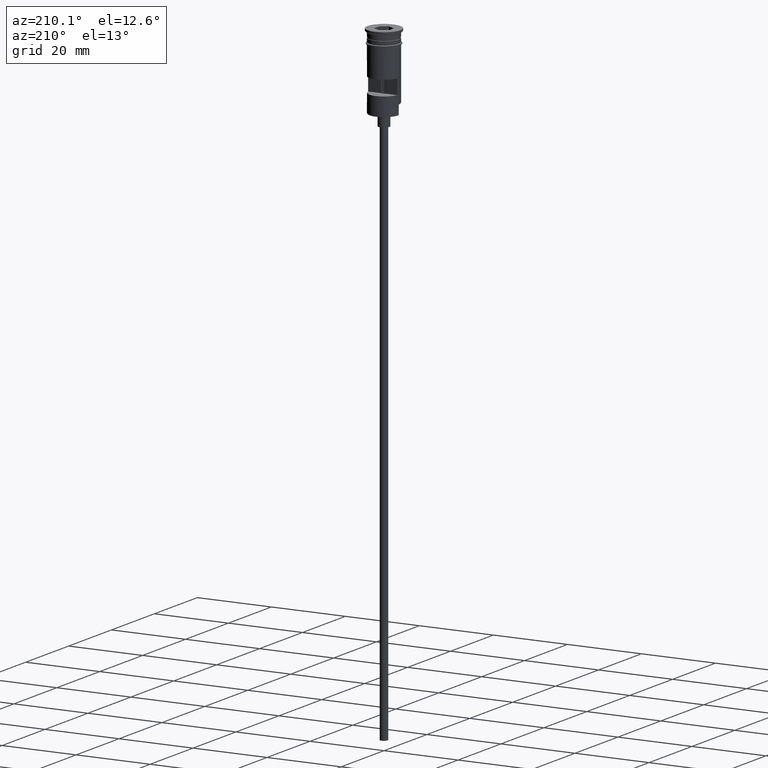
[diagram: clean part render]
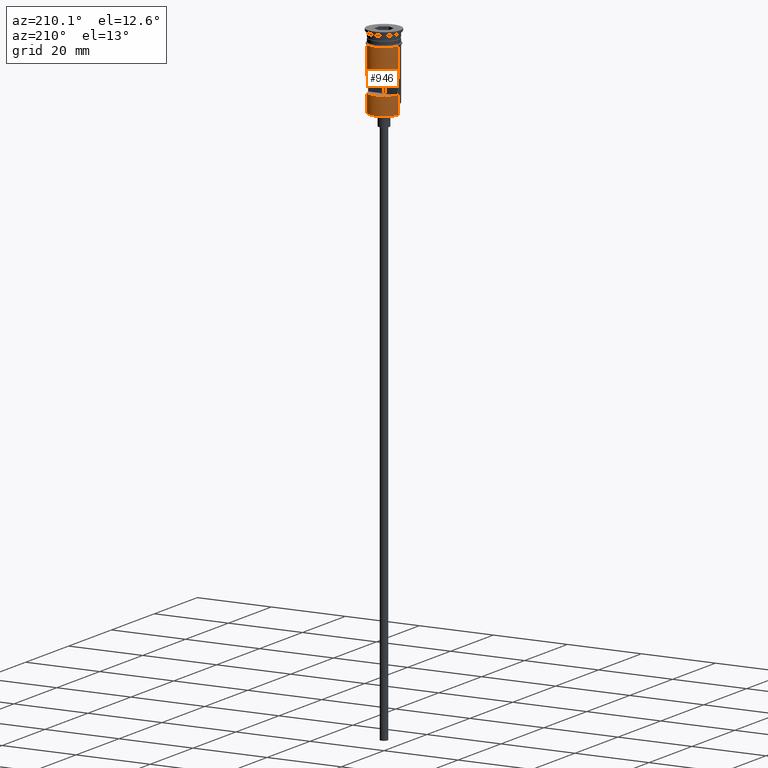
[diagram: same view with one face highlighted and labeled with its STEP entity id]
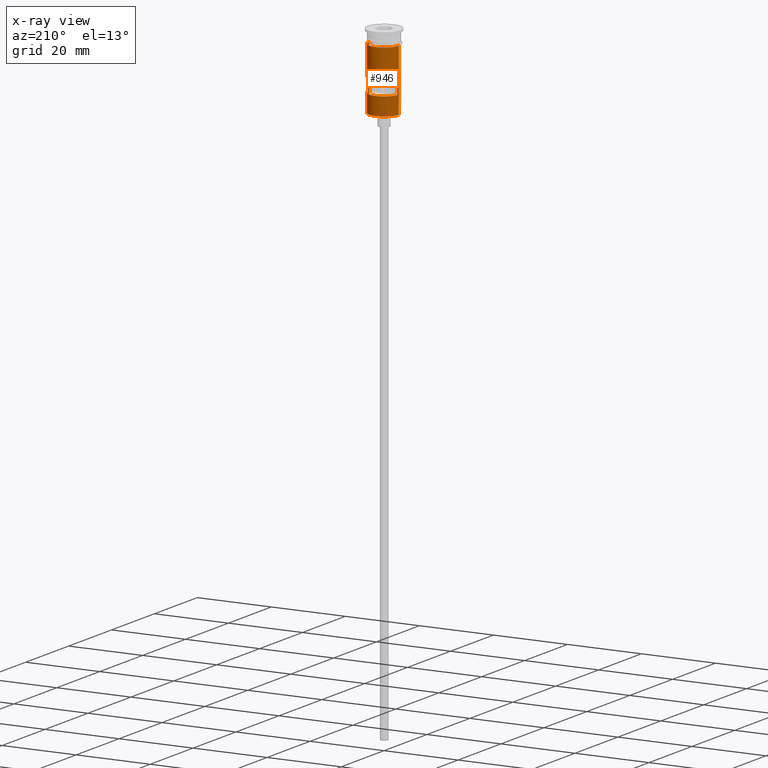
[diagram: x-ray of the same camera — body ghosted, the highlighted face saturated]
A machine part, auxiliary view. The second image highlights one B-rep face of the part: STEP entity #946.
The next image is the same camera in x-ray: the body ghosted, the highlighted face saturated — about 0% of this face is hidden behind the body in this view.
In plain terms, the highlighted cylindrical surface (edge-blend (fillet) strip) has radius 4 mm, axis along (-0, -0, 1).
Its self-contained STEP definition (entity closure, byte-faithful):
#2 = VERTEX_POINT ( 'NONE', #493 ) ;
#12 = DIRECTION ( 'NONE',  ( -0.000000000000000000, -0.000000000000000000, 1.000000000000000000 ) ) ;
#18 = DIRECTION ( 'NONE',  ( -1.000000000000000000, 0.000000000000000000, 0.000000000000000000 ) ) ;
#30 = DIRECTION ( 'NONE',  ( -0.000000000000000000, -0.000000000000000000, 1.000000000000000000 ) ) ;
#69 = LINE ( 'NONE', #559, #1596 ) ;
#79 = VECTOR ( 'NONE', #30, 1000.000000000000000 ) ;
#130 = EDGE_CURVE ( 'NONE', #646, #2, #266, .T. ) ;
#147 = CARTESIAN_POINT ( 'NONE',  ( -3.954743986657037524, 0.5999999999999996447, 0.000000000000000000 ) ) ;
#169 = CARTESIAN_POINT ( 'NONE',  ( 3.954743986657038413, 0.5999999999999996447, -11.50000000000000000 ) ) ;
#266 = CIRCLE ( 'NONE', #401, 4.000000000000000000 ) ;
#277 = DIRECTION ( 'NONE',  ( -0.000000000000000000, -0.000000000000000000, 1.000000000000000000 ) ) ;
#283 = LINE ( 'NONE', #147, #79 ) ;
#286 = VERTEX_POINT ( 'NONE', #568 ) ;
#304 = EDGE_CURVE ( 'NONE', #1567, #523, #490, .T. ) ;
#315 = CARTESIAN_POINT ( 'NONE',  ( 3.954743986657038413, 0.5999999999999996447, -15.50000000000000000 ) ) ;
#401 = AXIS2_PLACEMENT_3D ( 'NONE', #1395, #1177, #1022 ) ;
#411 = EDGE_LOOP ( 'NONE', ( #1162, #1601, #727, #1572, #780, #1145 ) ) ;
#416 = EDGE_CURVE ( 'NONE', #1381, #507, #1085, .T. ) ;
#425 = CARTESIAN_POINT ( 'NONE',  ( 4.000000000000000000, 4.898587196589412829E-16, -17.79999999999998295 ) ) ;
#426 = EDGE_CURVE ( 'NONE', #1476, #1381, #482, .T. ) ;
#471 = ORIENTED_EDGE ( 'NONE', *, *, #958, .F. ) ;
#482 = LINE ( 'NONE', #1129, #1364 ) ;
#490 = CIRCLE ( 'NONE', #1110, 4.000000000000000000 ) ;
#493 = CARTESIAN_POINT ( 'NONE',  ( -3.999999999999997335, 0.000000000000000000, -20.29999999999997584 ) ) ;
#495 = AXIS2_PLACEMENT_3D ( 'NONE', #541, #277, #905 ) ;
#507 = VERTEX_POINT ( 'NONE', #543 ) ;
#511 = CARTESIAN_POINT ( 'NONE',  ( 0.000000000000000000, 0.000000000000000000, -3.799999999999998490 ) ) ;
#523 = VERTEX_POINT ( 'NONE', #169 ) ;
#526 = FACE_BOUND ( 'NONE', #853, .T. ) ;
#541 = CARTESIAN_POINT ( 'NONE',  ( 0.000000000000000000, 0.000000000000000000, 0.000000000000000000 ) ) ;
#543 = CARTESIAN_POINT ( 'NONE',  ( -4.000000000000000000, 4.898587196589412829E-16, -3.799999999999998490 ) ) ;
#558 = DIRECTION ( 'NONE',  ( -0.000000000000000000, 0.000000000000000000, -1.000000000000000000 ) ) ;
#559 = CARTESIAN_POINT ( 'NONE',  ( 3.999999999999997335, 4.898587196589409870E-16, -20.49999999999999645 ) ) ;
#568 = CARTESIAN_POINT ( 'NONE',  ( -3.954743986657037524, 0.5999999999999996447, -15.50000000000000000 ) ) ;
#569 = DIRECTION ( 'NONE',  ( -0.000000000000000000, -0.000000000000000000, 1.000000000000000000 ) ) ;
#595 = DIRECTION ( 'NONE',  ( -0.000000000000000000, -0.000000000000000000, 1.000000000000000000 ) ) ;
#646 = VERTEX_POINT ( 'NONE', #1197 ) ;
#679 = CARTESIAN_POINT ( 'NONE',  ( -3.999999999999997335, 0.000000000000000000, -17.79999999999998295 ) ) ;
#695 = LINE ( 'NONE', #965, #1588 ) ;
#709 = VECTOR ( 'NONE', #1252, 1000.000000000000000 ) ;
#727 = ORIENTED_EDGE ( 'NONE', *, *, #416, .F. ) ;
#740 = EDGE_CURVE ( 'NONE', #646, #1476, #69, .T. ) ;
#780 = ORIENTED_EDGE ( 'NONE', *, *, #740, .F. ) ;
#781 = CARTESIAN_POINT ( 'NONE',  ( 0.000000000000000000, 0.000000000000000000, -15.50000000000000000 ) ) ;
#787 = CARTESIAN_POINT ( 'NONE',  ( 4.000000000000000000, 0.000000000000000000, -3.799999999999998490 ) ) ;
#827 = CARTESIAN_POINT ( 'NONE',  ( 0.000000000000000000, 0.000000000000000000, -11.50000000000000000 ) ) ;
#828 = AXIS2_PLACEMENT_3D ( 'NONE', #511, #1581, #1496 ) ;
#839 = CARTESIAN_POINT ( 'NONE',  ( -3.954743986657037524, 0.5999999999999996447, -11.50000000000000000 ) ) ;
#853 = EDGE_LOOP ( 'NONE', ( #993, #1306, #1243, #471 ) ) ;
#890 = DIRECTION ( 'NONE',  ( -0.000000000000000000, -0.000000000000000000, 1.000000000000000000 ) ) ;
#895 = CYLINDRICAL_SURFACE ( 'NONE', #495, 4.000000000000000000 ) ;
#905 = DIRECTION ( 'NONE',  ( 1.000000000000000000, 0.000000000000000000, 0.000000000000000000 ) ) ;
#946 = ADVANCED_FACE ( 'NONE', ( #526, #1156 ), #895, .T. ) ;
#958 = EDGE_CURVE ( 'NONE', #1079, #286, #1009, .T. ) ;
#965 = CARTESIAN_POINT ( 'NONE',  ( -4.000000000000000000, 4.898587196589412829E-16, 0.000000000000000000 ) ) ;
#970 = EDGE_CURVE ( 'NONE', #523, #1079, #1271, .T. ) ;
#993 = ORIENTED_EDGE ( 'NONE', *, *, #970, .F. ) ;
#1009 = CIRCLE ( 'NONE', #1165, 4.000000000000000000 ) ;
#1022 = DIRECTION ( 'NONE',  ( -1.000000000000000000, 0.000000000000000000, 0.000000000000000000 ) ) ;
#1044 = LINE ( 'NONE', #1537, #1242 ) ;
#1052 = EDGE_CURVE ( 'NONE', #2, #1459, #1044, .T. ) ;
#1055 = DIRECTION ( 'NONE',  ( 1.000000000000000000, 0.000000000000000000, 0.000000000000000000 ) ) ;
#1079 = VERTEX_POINT ( 'NONE', #315 ) ;
#1085 = CIRCLE ( 'NONE', #828, 4.000000000000000000 ) ;
#1110 = AXIS2_PLACEMENT_3D ( 'NONE', #827, #558, #1055 ) ;
#1129 = CARTESIAN_POINT ( 'NONE',  ( 4.000000000000000000, 0.000000000000000000, 0.000000000000000000 ) ) ;
#1145 = ORIENTED_EDGE ( 'NONE', *, *, #130, .T. ) ;
#1156 = FACE_OUTER_BOUND ( 'NONE', #411, .T. ) ;
#1162 = ORIENTED_EDGE ( 'NONE', *, *, #1052, .T. ) ;
#1165 = AXIS2_PLACEMENT_3D ( 'NONE', #781, #1393, #18 ) ;
#1177 = DIRECTION ( 'NONE',  ( 0.000000000000000000, 0.000000000000000000, 1.000000000000000000 ) ) ;
#1197 = CARTESIAN_POINT ( 'NONE',  ( 3.999999999999997335, 4.898587196589409870E-16, -20.29999999999997584 ) ) ;
#1242 = VECTOR ( 'NONE', #890, 1000.000000000000000 ) ;
#1243 = ORIENTED_EDGE ( 'NONE', *, *, #1415, .F. ) ;
#1252 = DIRECTION ( 'NONE',  ( 0.000000000000000000, 0.000000000000000000, -1.000000000000000000 ) ) ;
#1271 = LINE ( 'NONE', #1401, #709 ) ;
#1306 = ORIENTED_EDGE ( 'NONE', *, *, #304, .F. ) ;
#1364 = VECTOR ( 'NONE', #12, 1000.000000000000000 ) ;
#1381 = VERTEX_POINT ( 'NONE', #787 ) ;
#1393 = DIRECTION ( 'NONE',  ( 0.000000000000000000, 0.000000000000000000, 1.000000000000000000 ) ) ;
#1395 = CARTESIAN_POINT ( 'NONE',  ( 0.000000000000000000, 0.000000000000000000, -20.29999999999997584 ) ) ;
#1401 = CARTESIAN_POINT ( 'NONE',  ( 3.954743986657037524, 0.5999999999999996447, 0.000000000000000000 ) ) ;
#1415 = EDGE_CURVE ( 'NONE', #286, #1567, #283, .T. ) ;
#1459 = VERTEX_POINT ( 'NONE', #679 ) ;
#1476 = VERTEX_POINT ( 'NONE', #425 ) ;
#1496 = DIRECTION ( 'NONE',  ( 1.000000000000000000, 0.000000000000000000, 0.000000000000000000 ) ) ;
#1501 = EDGE_CURVE ( 'NONE', #1459, #507, #695, .T. ) ;
#1537 = CARTESIAN_POINT ( 'NONE',  ( -3.999999999999997335, 0.000000000000000000, -20.49999999999999645 ) ) ;
#1567 = VERTEX_POINT ( 'NONE', #839 ) ;
#1572 = ORIENTED_EDGE ( 'NONE', *, *, #426, .F. ) ;
#1581 = DIRECTION ( 'NONE',  ( -0.000000000000000000, -0.000000000000000000, 1.000000000000000000 ) ) ;
#1588 = VECTOR ( 'NONE', #595, 1000.000000000000000 ) ;
#1596 = VECTOR ( 'NONE', #569, 1000.000000000000000 ) ;
#1601 = ORIENTED_EDGE ( 'NONE', *, *, #1501, .T. ) ;